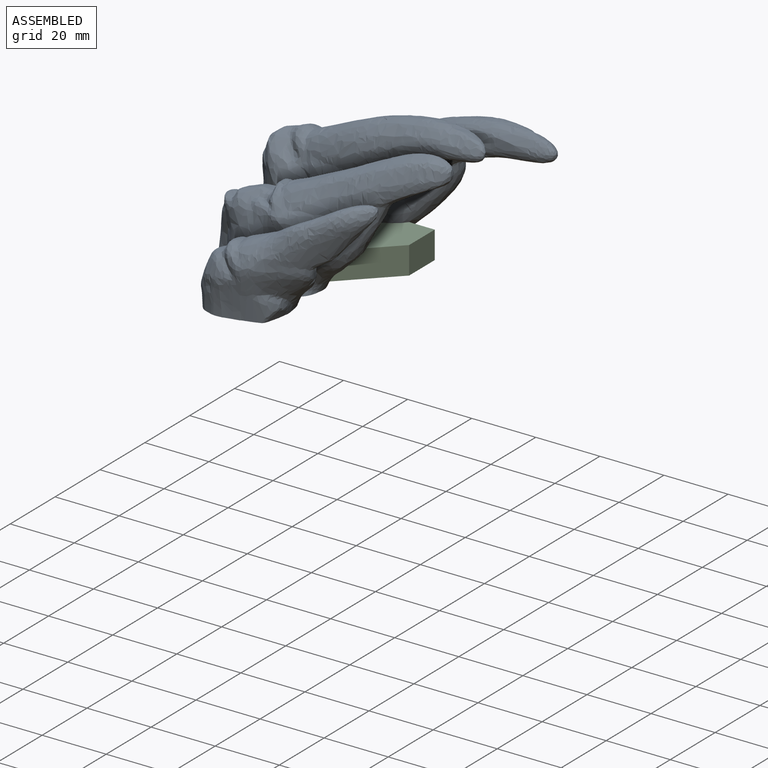
[diagram: assembled view]
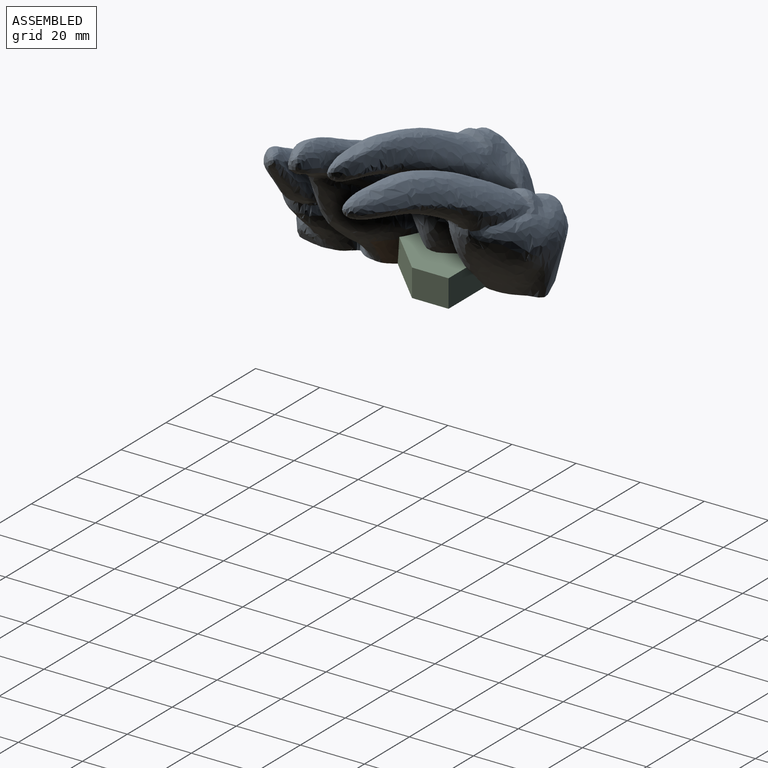
[diagram: assembled view, second angle]
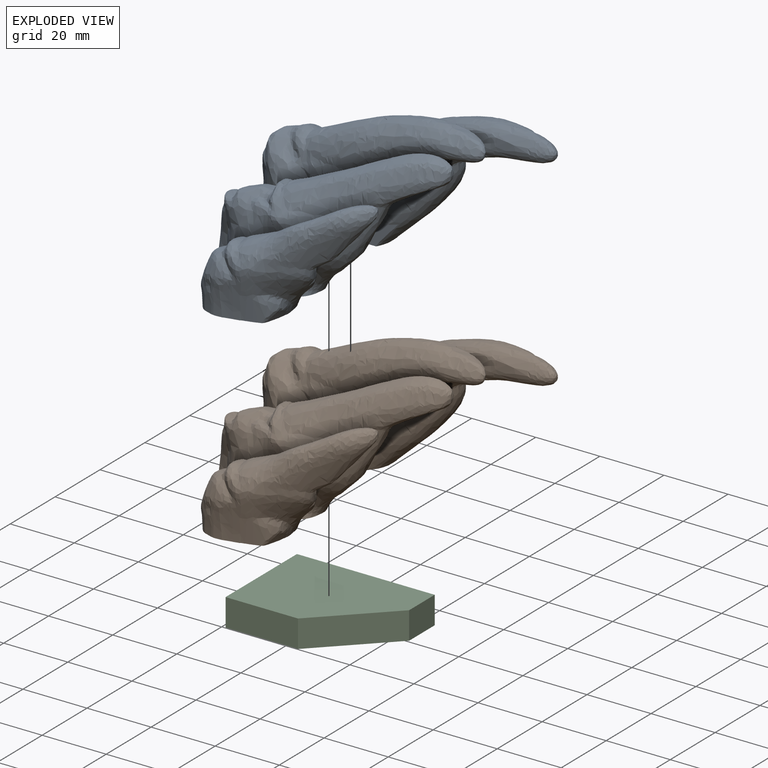
[diagram: exploded view]
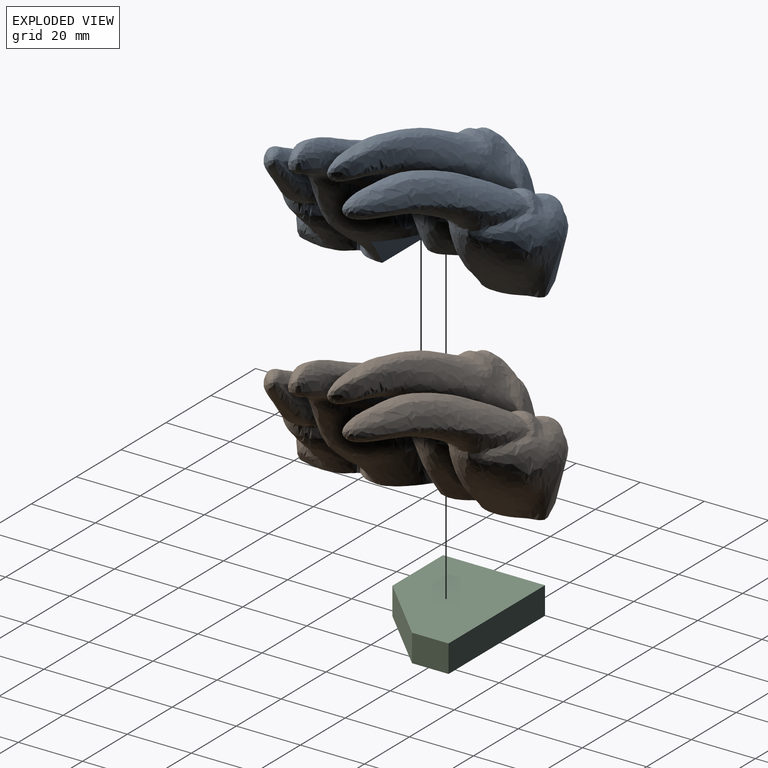
[diagram: exploded view, second angle]
FCSTD DOCUMENT  (FreeCAD 2023.810R14555 (Git shallow))
Label: claws-handle
License: All rights reserved
LicenseURL: https://en.wikipedia.org/wiki/All_rights_reserved
objects: PartDesign::SubShapeBinder×8, Sketcher::SketchObject×8, PartDesign::Pad×6, Part::MultiFuse×4, Part::Compound×3, App::Link×3, Part::Feature×2, Part::Cut×2, Part::Cylinder×2, Part::Revolution×2, Part::Refine×1, Part::Box×1, PartDesign::Chamfer×1, PartDesign::Body×1
note: 63 computed .brp shape members not serialized (recipe doc carries the construction recipe); baked Part::Feature solids carry a one-line shape summary decoded from their .brp

FEATURE [Part::Feature] handle_b_x003_solid  label="handle_b_x003 (Solid)"
  FixShape = 1
  InvalidShape = false
  TreeRank = 8
  ValidateShape = false
  shape: bbox 27 x 40 x 7 mm, 4400 faces (baked)
FEATURE [Part::Refine] Refined001  label="handle_b_x003 (Solid)001"
  FixShape = 1
  InvalidShape = false
  Placement = pos=(-90.9,-70.6,0) rot=(0,0,1;0rad)
  Source = -> handle_b_x003_solid
  TreeRank = 9
  ValidateShape = false
FEATURE [Part::Compound] Compound001
  FixShape = 1
  InvalidShape = false
  Links = -> [Refined001]
  Placement = pos=(58.2965,87.0136,7.1e-15) rot=(0.707107,-0.707107,0;3.14159rad)
  TreeRank = 13
  ValidateShape = false
FEATURE [PartDesign::SubShapeBinder] Binder  label="Binder(Compound001)"
  BindCopyOnChange = 0
  BindMode = 0
  ClaimChildren = false
  Context = -> Body [Binder.]
  EdgeTolerance = 1e-06
  FillStyle = 0
  FixShape = 1
  Fuse = false
  InvalidShape = false
  MakeFace = true
  MergeEdges = true
  OffsetFill = false
  OffsetIntersection = false
  OffsetJoinType = 0
  OffsetOpenResult = false
  Outline = false
  PartialLoad = false
  Placement = pos=(0,0,0.3) rot=(0,0,1;0rad)
  Relative = true
  SplitEdges = false
  Support = -> [Compound001[Face2354]]
  TightBound = false
  TreeRank = 26
  ValidateShape = false
  _Version = 8
FEATURE [PartDesign::SubShapeBinder] Binder001  label="Binder001(Compound001)"
  BindCopyOnChange = 0
  BindMode = 0
  ClaimChildren = false
  Context = -> Body [Binder001.]
  EdgeTolerance = 1e-06
  FillStyle = 0
  FixShape = 1
  Fuse = false
  InvalidShape = false
  MakeFace = true
  MergeEdges = true
  OffsetFill = false
  OffsetIntersection = false
  OffsetJoinType = 0
  OffsetOpenResult = false
  Outline = false
  PartialLoad = false
  Placement = pos=(0,0,-0.3) rot=(0,0,1;0rad)
  Relative = true
  SplitEdges = false
  Support = -> [Compound001[Face2446]]
  TightBound = false
  TreeRank = 27
  ValidateShape = false
  _Version = 8
FEATURE [PartDesign::SubShapeBinder] Binder002  label="Binder002(Compound001)"
  BindCopyOnChange = 0
  BindMode = 0
  ClaimChildren = false
  Context = -> Body [Binder002.]
  EdgeTolerance = 1e-06
  FillStyle = 0
  FixShape = 1
  Fuse = false
  InvalidShape = false
  MakeFace = true
  MergeEdges = true
  OffsetFill = false
  OffsetIntersection = false
  OffsetJoinType = 0
  OffsetOpenResult = false
  Outline = false
  PartialLoad = false
  Placement = pos=(0.5,0,0) rot=(0,0,1;0rad)
  Relative = true
  SplitEdges = false
  Support = -> [Compound001[Face3334]]
  TightBound = false
  TreeRank = 28
  ValidateShape = false
  _Version = 8
FEATURE [PartDesign::SubShapeBinder] Binder003  label="Binder003(Compound001)"
  BindCopyOnChange = 0
  BindMode = 0
  ClaimChildren = false
  Context = -> Body [Binder003.]
  EdgeTolerance = 1e-06
  FillStyle = 0
  FixShape = 1
  Fuse = false
  InvalidShape = false
  MakeFace = true
  MergeEdges = true
  OffsetFill = false
  OffsetIntersection = false
  OffsetJoinType = 0
  OffsetOpenResult = false
  Outline = false
  PartialLoad = false
  Placement = pos=(-0.5,0,0) rot=(0,0,1;0rad)
  Relative = true
  SplitEdges = false
  Support = -> [Compound001[Face2317]]
  TightBound = false
  TreeRank = 29
  ValidateShape = false
  _Version = 8
FEATURE [PartDesign::SubShapeBinder] Binder004  label="Binder004(Compound001)"
  BindCopyOnChange = 0
  BindMode = 0
  ClaimChildren = false
  Context = -> Body [Binder004.]
  EdgeTolerance = 1e-06
  FillStyle = 0
  FixShape = 1
  Fuse = false
  InvalidShape = false
  MakeFace = true
  MergeEdges = true
  OffsetFill = false
  OffsetIntersection = false
  OffsetJoinType = 0
  OffsetOpenResult = false
  Outline = false
  PartialLoad = false
  Relative = true
  SplitEdges = false
  Support = -> [Compound001[Face1308]]
  TightBound = false
  TreeRank = 30
  ValidateShape = false
  _Version = 8
FEATURE [Part::Box] Box  label="Cube"
  AttacherType = Attacher::AttachEngine3D
  FixShape = 1
  Height = 8
  InvalidShape = false
  Length = 42
  Placement = pos=(3.5,37,0) rot=(0,0,1;0rad)
  TreeRank = 62
  ValidateShape = false
  Width = 28
FEATURE [Part::Feature] Compound_solid  label="claw_handle_clipped001 (Solid)"
  FixShape = 1
  InvalidShape = false
  TreeRank = 61
  ValidateShape = false
  shape: bbox 83.86 x 80 x 48.5 mm, 15524 faces (baked)
FEATURE [PartDesign::SubShapeBinder] Binder005  label="Binder005(Compound001)"
  BindCopyOnChange = 0
  BindMode = 0
  ClaimChildren = false
  EdgeTolerance = 1e-06
  FillStyle = 0
  FixShape = 1
  Fuse = false
  InvalidShape = false
  MakeFace = true
  MergeEdges = true
  OffsetFill = false
  OffsetIntersection = false
  OffsetJoinType = 0
  OffsetOpenResult = false
  Outline = false
  PartialLoad = false
  Placement = pos=(0,-0.5,0) rot=(0,0,1;0rad)
  Relative = true
  SplitEdges = false
  Support = -> [Compound001[Face2326]]
  TightBound = false
  TreeRank = 57
  ValidateShape = false
  _Version = 8
FEATURE [Part::Cut] Cut
  Base = -> Compound_solid
  FixShape = 1
  InvalidShape = false
  Placement = pos=(-1.5,1.9,-6.3) rot=(0,0,1;0rad)
  Refine = true
  Tool = -> Box
  TreeRank = 63
  ValidateShape = false
FEATURE [PartDesign::SubShapeBinder] Binder006  label="Binder006(Compound001)"
  BindCopyOnChange = 0
  BindMode = 0
  ClaimChildren = false
  Context = -> Body [Binder006.]
  EdgeTolerance = 1e-06
  FillStyle = 0
  FixShape = 1
  Fuse = false
  InvalidShape = false
  MakeFace = true
  MergeEdges = true
  OffsetFill = false
  OffsetIntersection = false
  OffsetJoinType = 0
  OffsetOpenResult = false
  Outline = false
  PartialLoad = false
  Placement = pos=(0,0.3,0) rot=(0,0,1;0rad)
  Relative = true
  SplitEdges = false
  Support = -> [Compound001[Face3313]]
  TightBound = false
  TreeRank = 64
  ValidateShape = false
  _Version = 8
FEATURE [PartDesign::SubShapeBinder] Binder007  label="Binder007(Compound001)..."
  BindCopyOnChange = 0
  BindMode = 0
  ClaimChildren = false
  Context = -> Body [Binder007.]
  EdgeTolerance = 1e-06
  FillStyle = 0
  FixShape = 1
  Fuse = false
  InvalidShape = false
  MakeFace = true
  MergeEdges = true
  OffsetFill = false
  OffsetIntersection = false
  OffsetJoinType = 0
  OffsetOpenResult = false
  Outline = false
  PartialLoad = false
  Placement = pos=(0.3,-0.3,0) rot=(0,0,1;0rad)
  Relative = true
  SplitEdges = false
  Support = -> [Compound001[Face1256,Face1255]]
  TightBound = false
  TreeRank = 65
  ValidateShape = false
  _Version = 8
FEATURE [Sketcher::SketchObject] Sketch
  ArcFitTolerance = 1e-06
  AttachmentSupport = -> [Binder001]
  ExternalBSplineMaxDegree = 5
  ExternalBSplineTolerance = 0.0001
  ExternalGeometry = -> [Binder002,Binder003,Binder004,Binder006,Binder007]
  FixShape = 1
  FullyConstrained = true
  InternalTolerance = 1e-06
  InvalidShape = false
  MakeInternals = false
  MapMode = 5
  Placement = pos=(5e-16,0,-4.3) rot=(0,0,1;3.14159rad)
  Support = -> [Binder001]
  TreeRank = 31
  ValidateShape = false
  sketch-geometry (5):
    g0: LineSegment StartX=-3.39647 StartY=-54.4136 StartZ=0 EndX=-3.39647 EndY=-66.7136 EndZ=0
    g1: LineSegment StartX=-3.39647 StartY=-66.7136 StartZ=0 EndX=-44.3965 EndY=-66.7136 EndZ=0
    g2: LineSegment StartX=-44.3965 StartY=-66.7136 StartZ=0 EndX=-44.3965 EndY=-57.3136 EndZ=0
    g3: LineSegment StartX=-44.3965 StartY=-57.3136 StartZ=0 EndX=-41.4965 EndY=-54.4136 EndZ=0
    g4: LineSegment StartX=-41.4965 StartY=-54.4136 StartZ=0 EndX=-3.39647 EndY=-54.4136 EndZ=0
  constraints (15):
    c: PointOnObject(g0,g-5)
    c: Vertical(g0)
    c: Coincident(g0,g1)
    c: Horizontal(g1)
    c: Coincident(g1,g2)
    c: PointOnObject(g2,g-3)
    c: Coincident(g2,g3)
    c: PointOnObject(g3,g-4)
    c: Coincident(g3,g4)
    c: Coincident(g4,g0)
    c: Horizontal(g4)
    c: Vertical(g2)
    c: PointOnObject(g-4,g3)
    c: PointOnObject(g-7,g1)
    c: DistanceY(g0,g-6) = 1
FEATURE [Sketcher::SketchObject] Sketch001
  ArcFitTolerance = 1e-06
  AttachmentSupport = -> [Binder]
  ExternalBSplineMaxDegree = 5
  ExternalBSplineTolerance = 0.0001
  ExternalGeometry = -> [Sketch,Binder,Binder005]
  FixShape = 1
  FullyConstrained = true
  InternalTolerance = 1e-06
  InvalidShape = false
  MakeInternals = false
  MapMode = 5
  Placement = pos=(0,0,0.3) rot=(0,0,1;0rad)
  Support = -> [Binder]
  TreeRank = 32
  ValidateShape = false
  sketch-geometry (3):
    g0: LineSegment StartX=3.39647 StartY=66.7136 StartZ=0 EndX=3.39647 EndY=38.9136 EndZ=0
    g1: LineSegment StartX=3.39647 StartY=38.9136 StartZ=0 EndX=25.9965 EndY=38.9136 EndZ=0
    g2: LineSegment StartX=25.9965 StartY=38.9136 StartZ=0 EndX=44.3965 EndY=57.3136 EndZ=0
  constraints (8):
    c: Coincident(g-4,g0)
    c: Vertical(g0)
    c: Coincident(g0,g1)
    c: Horizontal(g1)
    c: Coincident(g1,g2)
    c: Coincident(g2,g-6)
    c: PointOnObject(g-6,g2)
    c: Horizontal(g0,g-8)
FEATURE [PartDesign::Pad] Pad
  AddSubType = 0
  AlongSketchNormal = false
  AutoTaperInnerAngle = true
  CheckUpToFaceLimits = true
  ClaimChildren = false
  Direction = (-1e-16,0,1)
  Fit = 0
  FitJoin = 0
  FixShape = 1
  InnerFit = 0
  InnerFitJoin = 0
  InvalidShape = false
  Length = 2
  Length2 = 10
  Linearize = true
  NewSolid = false
  Profile = -> Sketch
  ReferenceAxis = -> Sketch [N_Axis]
  Refine = true
  Reversed = true
  Suppress = false
  TaperInnerAngle = 0
  TaperInnerAngleRev = 0
  TreeRank = 33
  Type = 0
  ValidateShape = false
  _ProfileBasedVersion = 1
FEATURE [PartDesign::Pad] Pad001
  AddSubType = 0
  AlongSketchNormal = false
  AutoTaperInnerAngle = true
  BaseFeature = -> Pad
  CheckUpToFaceLimits = true
  ClaimChildren = false
  Direction = (-1e-16,0,1)
  Fit = 0
  FitJoin = 0
  FixShape = 1
  InnerFit = 0
  InnerFitJoin = 0
  InvalidShape = false
  Length = 2
  Length2 = 10
  Linearize = true
  NewSolid = false
  Profile = -> Sketch001
  ReferenceAxis = -> Sketch001 [N_Axis]
  Refine = true
  Suppress = false
  TaperInnerAngle = 0
  TaperInnerAngleRev = 0
  TreeRank = 34
  Type = 0
  ValidateShape = false
  _ProfileBasedVersion = 1
FEATURE [Sketcher::SketchObject] Sketch002
  ArcFitTolerance = 1e-06
  AttachmentSupport = -> [Pad001]
  ExternalBSplineMaxDegree = 5
  ExternalBSplineTolerance = 0.0001
  ExternalGeometry = -> [Pad001]
  FixShape = 1
  FullyConstrained = true
  InternalTolerance = 1e-06
  InvalidShape = false
  MakeInternals = false
  MapMode = 5
  Placement = pos=(0,66.7136,0) rot=(0,0.707107,0.707107;3.14159rad)
  Support = -> [Pad001]
  TreeRank = 35
  ValidateShape = false
  sketch-geometry (4):
    g0: LineSegment StartX=-44.3965 StartY=2.3 StartZ=0 EndX=-3.39647 EndY=2.3 EndZ=0
    g1: LineSegment StartX=-3.39647 StartY=2.3 StartZ=0 EndX=-3.39647 EndY=-6.3 EndZ=0
    g2: LineSegment StartX=-3.39647 StartY=-6.3 StartZ=0 EndX=-44.3965 EndY=-6.3 EndZ=0
    g3: LineSegment StartX=-44.3965 StartY=-6.3 StartZ=0 EndX=-44.3965 EndY=2.3 EndZ=0
  constraints (10):
    c: Coincident(g0,g1)
    c: Coincident(g1,g2)
    c: Coincident(g2,g3)
    c: Coincident(g3,g0)
    c: Horizontal(g0)
    c: Horizontal(g2)
    c: Vertical(g1)
    c: Vertical(g3)
    c: Coincident(g0,g-3)
    c: Coincident(g1,g-4)
FEATURE [PartDesign::Pad] Pad002
  AddSubType = 0
  AlongSketchNormal = false
  AutoTaperInnerAngle = true
  BaseFeature = -> Pad001
  CheckUpToFaceLimits = true
  ClaimChildren = false
  Direction = (0,1,2e-16)
  Fit = 0
  FitJoin = 0
  FixShape = 1
  InnerFit = 0
  InnerFitJoin = 0
  InvalidShape = false
  Length = 2
  Length2 = 10
  Linearize = true
  NewSolid = false
  Profile = -> Sketch002
  ReferenceAxis = -> Sketch002 [N_Axis]
  Refine = true
  Suppress = false
  TaperInnerAngle = 0
  TaperInnerAngleRev = 0
  TreeRank = 56
  Type = 0
  ValidateShape = false
  _ProfileBasedVersion = 1
FEATURE [Sketcher::SketchObject] Sketch003
  ArcFitTolerance = 1e-06
  AttachmentSupport = -> [Pad002]
  ExternalBSplineMaxDegree = 5
  ExternalBSplineTolerance = 0.0001
  ExternalGeometry = -> [Pad002]
  FixShape = 1
  FullyConstrained = true
  InternalTolerance = 1e-06
  InvalidShape = false
  MakeInternals = false
  MapMode = 5
  Placement = pos=(44.3965,1.034e-13,0) rot=(0.57735,0.57735,0.57735;2.0944rad)
  Support = -> [Pad002]
  TreeRank = 37
  ValidateShape = false
  sketch-geometry (1):
    g0: LineSegment StartX=57.3136 StartY=2.3 StartZ=0 EndX=57.3136 EndY=-6.3 EndZ=0
  constraints (2):
    c: Coincident(g0,g-3)
    c: Coincident(g0,g-5)
FEATURE [PartDesign::Pad] Pad003
  AddSubType = 0
  AlongSketchNormal = false
  AutoTaperInnerAngle = true
  BaseFeature = -> Pad002
  CheckUpToFaceLimits = true
  ClaimChildren = false
  Direction = (1,2.2e-15,0)
  Fit = 0
  FitJoin = 0
  FixShape = 1
  InnerFit = 0
  InnerFitJoin = 0
  InvalidShape = false
  Length = 2
  Length2 = 10
  Linearize = true
  NewSolid = false
  Profile = -> Sketch003
  ReferenceAxis = -> Sketch003 [N_Axis]
  Refine = true
  Suppress = false
  TaperInnerAngle = 0
  TaperInnerAngleRev = 0
  TreeRank = 38
  Type = 0
  ValidateShape = false
  _ProfileBasedVersion = 1
FEATURE [Sketcher::SketchObject] Sketch004
  ArcFitTolerance = 1e-06
  AttachmentSupport = -> [Pad003]
  ExternalBSplineMaxDegree = 5
  ExternalBSplineTolerance = 0.0001
  ExternalGeometry = -> [Pad003]
  FixShape = 1
  FullyConstrained = true
  InternalTolerance = 1e-06
  InvalidShape = false
  MakeInternals = false
  MapMode = 5
  Placement = pos=(-6.45858,6.45858,-8e-16) rot=(0.862856,0.357407,0.357407;1.71777rad)
  Support = -> [Pad003]
  TreeRank = 39
  ValidateShape = false
  sketch-geometry (4):
    g0: LineSegment StartX=45.8984 StartY=-6.3 StartZ=0 EndX=71.9199 EndY=-6.3 EndZ=0
    g1: LineSegment StartX=71.9199 StartY=-6.3 StartZ=0 EndX=71.9199 EndY=2.3 EndZ=0
    g2: LineSegment StartX=71.9199 StartY=2.3 StartZ=0 EndX=45.8984 EndY=2.3 EndZ=0
    g3: LineSegment StartX=45.8984 StartY=2.3 StartZ=0 EndX=45.8984 EndY=-6.3 EndZ=0
  constraints (9):
    c: Coincident(g0,g1)
    c: Coincident(g1,g2)
    c: Coincident(g2,g3)
    c: Horizontal(g0)
    c: Vertical(g3)
    c: Coincident(g1,g-4)
    c: Coincident(g2,g-4)
    c: Coincident(g0,g3)
    c: Coincident(g-3,g0)
FEATURE [PartDesign::Pad] Pad004
  AddSubType = 0
  AlongSketchNormal = false
  AutoTaperInnerAngle = true
  BaseFeature = -> Pad003
  CheckUpToFaceLimits = true
  ClaimChildren = false
  Direction = (1,2.2e-15,0)
  Fit = 0
  FitJoin = 0
  FixShape = 1
  InnerFit = 0
  InnerFitJoin = 0
  InvalidShape = false
  Length = 2
  Length2 = 10
  Linearize = true
  NewSolid = false
  Profile = -> Sketch004
  ReferenceAxis = -> Pad003 [Edge24]
  Refine = true
  Suppress = false
  TaperInnerAngle = 0
  TaperInnerAngleRev = 0
  TreeRank = 40
  Type = 0
  ValidateShape = false
  _ProfileBasedVersion = 1
FEATURE [Sketcher::SketchObject] Sketch005
  ArcFitTolerance = 1e-06
  AttachmentSupport = -> [Pad004]
  ExternalBSplineMaxDegree = 5
  ExternalBSplineTolerance = 0.0001
  ExternalGeometry = -> [Pad004]
  FixShape = 1
  FullyConstrained = true
  InternalTolerance = 1e-06
  InvalidShape = false
  MakeInternals = false
  MapMode = 5
  Placement = pos=(0,0,2.3) rot=(0,0,1;0rad)
  Support = -> [Pad004]
  TreeRank = 66
  ValidateShape = false
  sketch-geometry (4):
    g0: LineSegment StartX=3.39647 StartY=38.9136 StartZ=0 EndX=27.9965 EndY=38.9136 EndZ=0
    g1: LineSegment StartX=27.9965 StartY=38.9136 StartZ=0 EndX=25.9965 EndY=36.9136 EndZ=0
    g2: LineSegment StartX=25.9965 StartY=36.9136 StartZ=0 EndX=3.39647 EndY=36.9136 EndZ=0
    g3: LineSegment StartX=3.39647 StartY=36.9136 StartZ=0 EndX=3.39647 EndY=38.9136 EndZ=0
  constraints (10):
    c: Coincident(g-3,g0)
    c: Coincident(g0,g-4)
    c: Coincident(g0,g1)
    c: Coincident(g1,g2)
    c: Horizontal(g2)
    c: Coincident(g2,g3)
    c: Coincident(g3,g0)
    c: Vertical(g3)
    c: Parallel(g1,g-4)
    c: DistanceY(g3,g3) = 2
FEATURE [PartDesign::Pad] Pad005
  AddSubType = 0
  AlongSketchNormal = false
  AutoTaperInnerAngle = true
  BaseFeature = -> Pad004
  CheckUpToFaceLimits = true
  ClaimChildren = false
  Direction = (0,0,1)
  Fit = 0
  FitJoin = 0
  FixShape = 1
  InnerFit = 0
  InnerFitJoin = 0
  InvalidShape = false
  Length = 10
  Length2 = 10
  Linearize = true
  NewSolid = false
  Profile = -> Sketch005
  ReferenceAxis = -> Sketch005 [N_Axis]
  Refine = true
  Suppress = false
  TaperInnerAngle = 0
  TaperInnerAngleRev = 0
  TreeRank = 67
  Type = 3
  UpToFace = -> Pad004 [Face13]
  ValidateShape = false
  _ProfileBasedVersion = 1
FEATURE [PartDesign::Chamfer] Chamfer
  AddSubType = 0
  Angle = 45
  Base = -> Pad005 [Edge3,Edge34,Edge31,Edge28,Edge16,Edge6,Edge2,Edge8,Edge4,Edge9,Edge15,Edge37,Edge17,Edge26]
  BaseFeature = -> Pad005
  ChamferType = 0
  FixShape = 1
  FlipDirection = false
  InvalidShape = false
  NewSolid = false
  Refine = true
  Size = 0.5
  Size2 = 1
  SupportTransform = false
  Suppress = false
  TreeRank = 58
  UseAllEdges = false
  ValidateShape = false
FEATURE [PartDesign::Body] Body  label="handle-wrapper"
  AutoGroupSolids = false
  ClaimAllChildren = false
  ExportMode = 0
  FixShape = 1
  Group = -> [Binder,Binder001,Binder002,Binder003,Binder004,Sketch,Sketch001,Binder005,Binder006,Binder007,Pad,Pad001,Sketch002,Pad002,Sketch003,Pad003,Sketch004,Pad004,Sketch005,Pad005,Chamfer]
  InvalidShape = false
  Origin = -> Origin
  Tip = -> Pad005
  TreeRank = 55
  ValidateShape = false
  _ExportChildren = -> [Binder,Binder001,Binder002,Binder003,Binder004,Binder005,Binder006,Binder007,Pad,Pad001,Pad002,Pad003,Pad004,Pad005,Chamfer]
  _GroupVersion = 1
FEATURE [Part::Cylinder] Cylinder
  Angle = 360
  AttacherType = Attacher::AttachEngine3D
  FirstAngle = 0
  FixShape = 1
  Height = 7
  InvalidShape = false
  Radius = 2.1
  SecondAngle = 0
  TreeRank = 76
  ValidateShape = false
FEATURE [Part::MultiFuse] Fusion001  label="claw-handle-voron"
  FixShape = 1
  InvalidShape = false
  Refine = true
  Shapes = -> [Cut,Body]
  TreeRank = 71
  ValidateShape = false
FEATURE [App::Link] Link  label="claw-handle-with-cutout"
  AutoLinkLabel = true
  AutoPlacement = true
  LinkPlacement = pos=(-1.5,1.9,-6.3) rot=(0,0,1;0rad)
  LinkedObject = -> Cut
  Placement = pos=(-1.5,1.9,-6.3) rot=(0,0,1;0rad)
  SyncGroupVisibility = false
  TreeRank = 72
  _LinkVersion = 1
FEATURE [App::Link] Link001  label="claw-handle-flat"
  AutoLinkLabel = true
  AutoPlacement = true
  LinkPlacement = pos=(-1.5,1.9,-6.3) rot=(0,0,1;0rad)
  LinkedObject = -> Compound_solid
  Placement = pos=(-1.5,1.9,-6.3) rot=(0,0,1;0rad)
  SyncGroupVisibility = false
  TreeRank = 73
  _LinkVersion = 1
FEATURE [Sketcher::SketchObject] Sketch006
  ArcFitTolerance = 1e-06
  AttachmentOffset = pos=(0,0,0) rot=(0,1,0;1.5708rad)
  AttachmentSupport = -> [Cylinder]
  ExternalBSplineMaxDegree = 5
  ExternalBSplineTolerance = 0.0001
  ExternalGeometry = -> [Cylinder]
  FixShape = 1
  FullyConstrained = true
  InternalTolerance = 1e-06
  InvalidShape = false
  MakeInternals = false
  MapMode = 11
  Placement = pos=(0,0,0) rot=(-0.57735,0.57735,0.57735;2.0944rad)
  Support = -> [Cylinder]
  TreeRank = 77
  ValidateShape = false
  sketch-geometry (3):
    g0: LineSegment StartX=0 StartY=2.1 StartZ=0 EndX=0 EndY=2.6 EndZ=0
    g1: LineSegment StartX=0 StartY=2.6 StartZ=0 EndX=-0.5 EndY=2.1 EndZ=0
    g2: LineSegment StartX=-0.5 StartY=2.1 StartZ=0 EndX=0 EndY=2.1 EndZ=0
  constraints (8):
    c: Coincident(g0,g-3)
    c: PointOnObject(g0,g-2)
    c: Coincident(g1,g0)
    c: Coincident(g2,g1)
    c: Coincident(g2,g0)
    c: Horizontal(g2)
    c: Equal(g0,g2)
    c: DistanceY(g0,g0) = 0.5
FEATURE [Part::Revolution] Revolve
  Angle = 360
  Axis = (0,0,1)
  Base = (0,0,0)
  FaceMakerClass = Part::FaceMakerBullseye
  FixShape = 1
  InvalidShape = false
  Solid = true
  Source = -> Sketch006
  Symmetric = false
  TreeRank = 78
  ValidateShape = false
FEATURE [Part::MultiFuse] Fusion
  FixShape = 1
  InvalidShape = false
  Refine = true
  Shapes = -> [Cylinder,Revolve]
  TreeRank = 79
  ValidateShape = false
FEATURE [Part::Compound] Compound
  FixShape = 1
  InvalidShape = false
  Links = -> [Fusion]
  Placement = pos=(22,64,-0.01) rot=(0,0,1;0rad)
  TreeRank = 80
  ValidateShape = false
FEATURE [Part::Cylinder] Cylinder001
  Angle = 360
  AttacherType = Attacher::AttachEngine3D
  FirstAngle = 0
  FixShape = 1
  Height = 7
  InvalidShape = false
  Radius = 2.1
  SecondAngle = 0
  TreeRank = 76
  ValidateShape = false
FEATURE [Sketcher::SketchObject] Sketch007
  ArcFitTolerance = 1e-06
  AttachmentOffset = pos=(0,0,0) rot=(0,1,0;1.5708rad)
  AttachmentSupport = -> [Cylinder001]
  ExternalBSplineMaxDegree = 5
  ExternalBSplineTolerance = 0.0001
  ExternalGeometry = -> [Cylinder001]
  FixShape = 1
  FullyConstrained = true
  InternalTolerance = 1e-06
  InvalidShape = false
  MakeInternals = false
  MapMode = 11
  Placement = pos=(0,0,0) rot=(-0.57735,0.57735,0.57735;2.0944rad)
  Support = -> [Cylinder001]
  TreeRank = 77
  ValidateShape = false
  sketch-geometry (3):
    g0: LineSegment StartX=0 StartY=2.1 StartZ=0 EndX=0 EndY=2.6 EndZ=0
    g1: LineSegment StartX=0 StartY=2.6 StartZ=0 EndX=-0.5 EndY=2.1 EndZ=0
    g2: LineSegment StartX=-0.5 StartY=2.1 StartZ=0 EndX=0 EndY=2.1 EndZ=0
  constraints (8):
    c: Coincident(g0,g-3)
    c: PointOnObject(g0,g-2)
    c: Coincident(g1,g0)
    c: Coincident(g2,g1)
    c: Coincident(g2,g0)
    c: Horizontal(g2)
    c: Equal(g0,g2)
    c: DistanceY(g0,g0) = 0.5
FEATURE [Part::Revolution] Revolve001
  Angle = 360
  Axis = (0,0,1)
  Base = (0,0,0)
  FaceMakerClass = Part::FaceMakerBullseye
  FixShape = 1
  InvalidShape = false
  Solid = true
  Source = -> Sketch007
  Symmetric = false
  TreeRank = 78
  ValidateShape = false
FEATURE [Part::MultiFuse] Fusion002
  FixShape = 1
  InvalidShape = false
  Refine = true
  Shapes = -> [Cylinder001,Revolve001]
  TreeRank = 79
  ValidateShape = false
FEATURE [Part::Compound] Compound002
  FixShape = 1
  InvalidShape = false
  Links = -> [Fusion002]
  Placement = pos=(22,24,-0.01) rot=(0,0,1;0rad)
  TreeRank = 80
  ValidateShape = false
FEATURE [Part::MultiFuse] Fusion003
  FixShape = 1
  InvalidShape = false
  Refine = true
  Shapes = -> [Compound,Compound002]
  TreeRank = 81
  ValidateShape = false
FEATURE [Part::Cut] Cut001  label="claw-handle-heat-inset"
  Base = -> Compound_solid
  FixShape = 1
  InvalidShape = false
  Refine = true
  Tool = -> Fusion003
  TreeRank = 82
  ValidateShape = false
FEATURE [App::Link] Link002  label="voron-door-handle-wrapper"
  AutoLinkLabel = true
  AutoPlacement = true
  LinkedObject = -> Body
  SyncGroupVisibility = false
  TreeRank = 83
  _LinkVersion = 1
